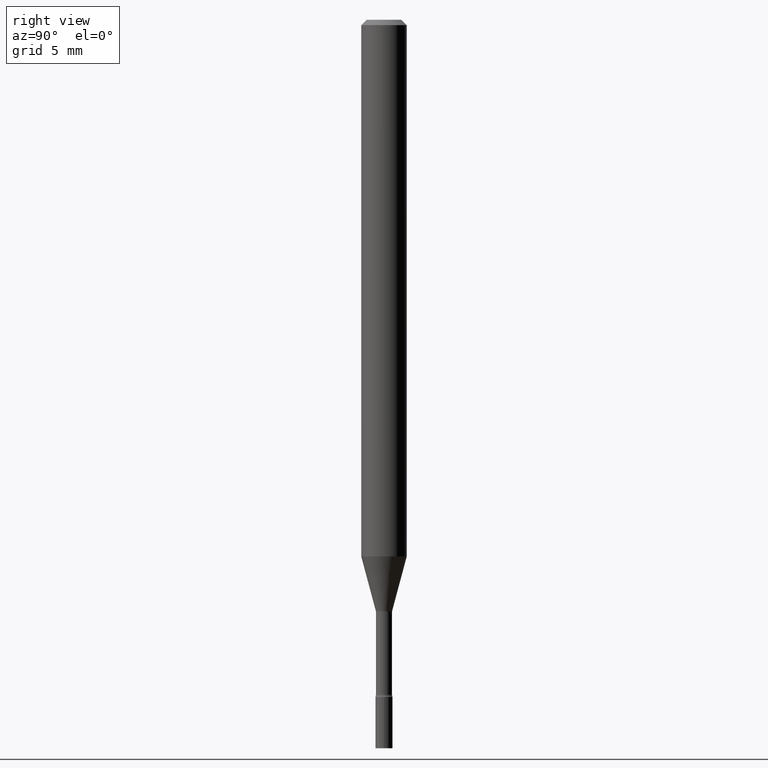
[diagram: clean part render]
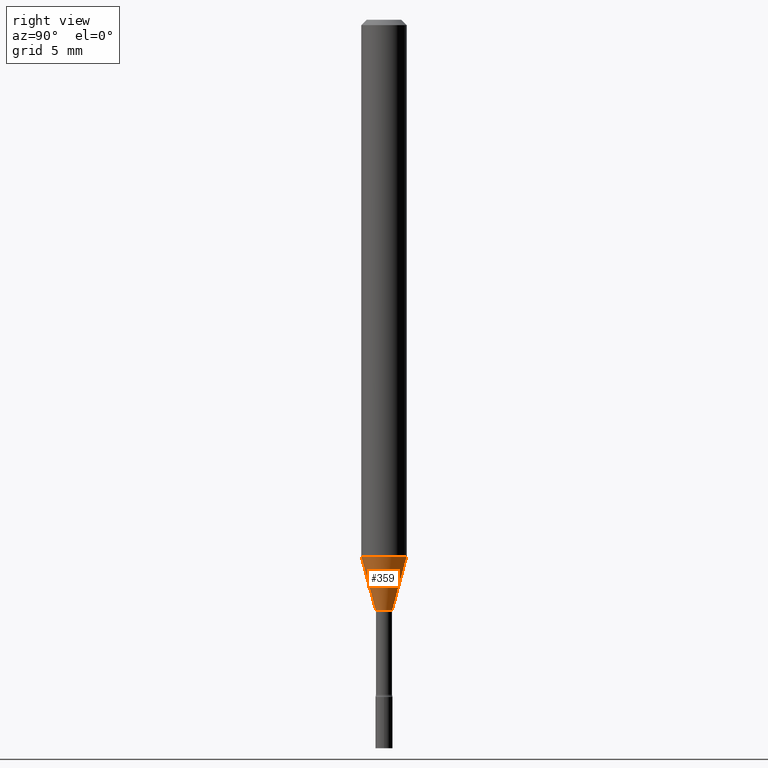
[diagram: same view with one face highlighted and labeled with its STEP entity id]
A machine part, right view. The second image highlights one B-rep face of the part: STEP entity #359.
In plain terms, the highlighted conical surface has half-angle 15 deg.
Its self-contained STEP definition (entity closure, byte-faithful):
#19 = CONICAL_SURFACE ( 'NONE', #262, 0.02261111260566402159, 0.2617993877991494633 ) ;
#55 = FACE_OUTER_BOUND ( 'NONE', #433, .T. ) ;
#106 = CIRCLE ( 'NONE', #403, 0.06250000000000000000 ) ;
#110 = CARTESIAN_POINT ( 'NONE',  ( 3.602695845204330567E-29, -5.143781497267456685E-15, -1.473225147374217503 ) ) ;
#119 = ORIENTED_EDGE ( 'NONE', *, *, #372, .F. ) ;
#139 = DIRECTION ( 'NONE',  ( -2.445448240973584878E-29, 3.491510789396586553E-15, 1.000000000000000000 ) ) ;
#140 = ORIENTED_EDGE ( 'NONE', *, *, #198, .F. ) ;
#141 = AXIS2_PLACEMENT_3D ( 'NONE', #285, #487, #330 ) ;
#166 = VERTEX_POINT ( 'NONE', #410 ) ;
#177 = EDGE_CURVE ( 'NONE', #223, #166, #368, .T. ) ;
#179 = VERTEX_POINT ( 'NONE', #193 ) ;
#188 = LINE ( 'NONE', #396, #382 ) ;
#189 = DIRECTION ( 'NONE',  ( -6.982962677686265922E-15, -1.000000000000000000, 4.370956789862821150E-15 ) ) ;
#193 = CARTESIAN_POINT ( 'NONE',  ( -4.364351673553557762E-16, -0.06250000000000517641, -1.473225147374217281 ) ) ;
#198 = EDGE_CURVE ( 'NONE', #179, #166, #106, .T. ) ;
#206 = DIRECTION ( 'NONE',  ( -2.445448240973584878E-29, 3.491510789396586553E-15, 1.000000000000000000 ) ) ;
#223 = VERTEX_POINT ( 'NONE', #478 ) ;
#262 = AXIS2_PLACEMENT_3D ( 'NONE', #267, #139, #431 ) ;
#264 = EDGE_CURVE ( 'NONE', #315, #223, #321, .T. ) ;
#267 = CARTESIAN_POINT ( 'NONE',  ( 3.966743255192128209E-29, -5.663553471389566321E-15, -1.622092501787272933 ) ) ;
#285 = CARTESIAN_POINT ( 'NONE',  ( 3.966743255192128209E-29, -5.663553471389566321E-15, -1.622092501787272933 ) ) ;
#315 = VERTEX_POINT ( 'NONE', #519 ) ;
#321 = CIRCLE ( 'NONE', #141, 0.02261111260566402159 ) ;
#326 = CARTESIAN_POINT ( 'NONE',  ( 1.606616180941216531E-16, 0.02261111260565835945, -1.622092501787272933 ) ) ;
#330 = DIRECTION ( 'NONE',  ( -6.982962677686265922E-15, -1.000000000000000000, 0.000000000000000000 ) ) ;
#342 = VECTOR ( 'NONE', #363, 39.37007874015748854 ) ;
#352 = ORIENTED_EDGE ( 'NONE', *, *, #264, .T. ) ;
#359 = ADVANCED_FACE ( 'NONE', ( #55 ), #19, .T. ) ;
#363 = DIRECTION ( 'NONE',  ( 1.839019923739594399E-15, 0.2588190451025241257, 0.9659258262890673130 ) ) ;
#368 = LINE ( 'NONE', #326, #342 ) ;
#372 = EDGE_CURVE ( 'NONE', #315, #179, #188, .T. ) ;
#382 = VECTOR ( 'NONE', #477, 39.37007874015748854 ) ;
#396 = CARTESIAN_POINT ( 'NONE',  ( -1.578925554262736576E-16, -0.02261111260566968720, -1.622092501787272933 ) ) ;
#403 = AXIS2_PLACEMENT_3D ( 'NONE', #110, #206, #189 ) ;
#410 = CARTESIAN_POINT ( 'NONE',  ( 4.440892098500984107E-16, 0.06249999999999483746, -1.473225147374217725 ) ) ;
#431 = DIRECTION ( 'NONE',  ( -6.982962677686265922E-15, -1.000000000000000000, 0.000000000000000000 ) ) ;
#433 = EDGE_LOOP ( 'NONE', ( #352, #508, #140, #119 ) ) ;
#477 = DIRECTION ( 'NONE',  ( -1.807323732225324223E-15, -0.2588190451025173533, 0.9659258262890690894 ) ) ;
#478 = CARTESIAN_POINT ( 'NONE',  ( 3.023754139721102784E-16, 0.02261111260565836292, -1.622092501787272933 ) ) ;
#487 = DIRECTION ( 'NONE',  ( -2.445448240973584878E-29, 3.491510789396586553E-15, 1.000000000000000000 ) ) ;
#508 = ORIENTED_EDGE ( 'NONE', *, *, #177, .T. ) ;
#519 = CARTESIAN_POINT ( 'NONE',  ( -1.578925554262736576E-16, -0.02261111260566968720, -1.622092501787272933 ) ) ;